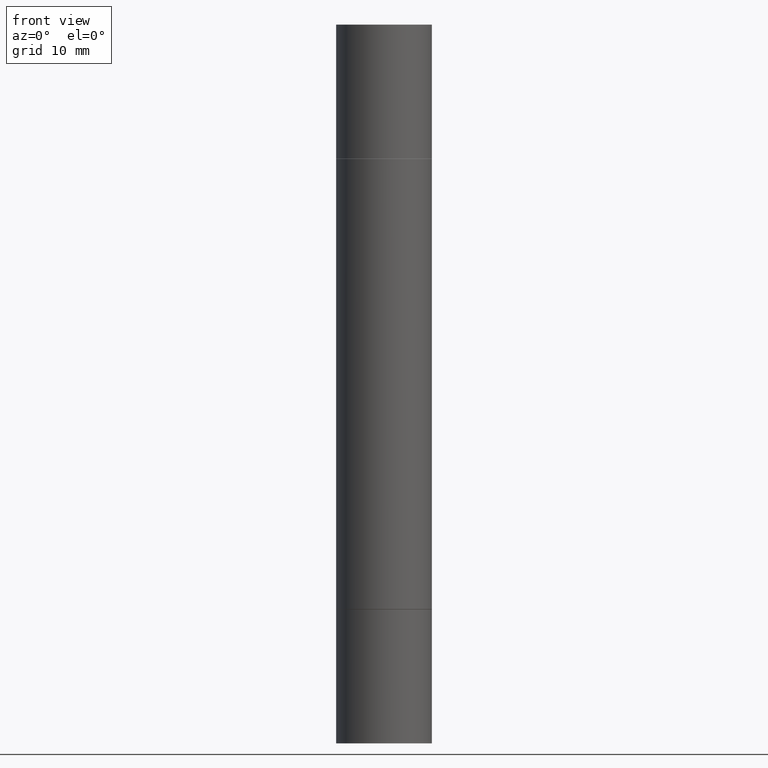
[diagram: clean part render]
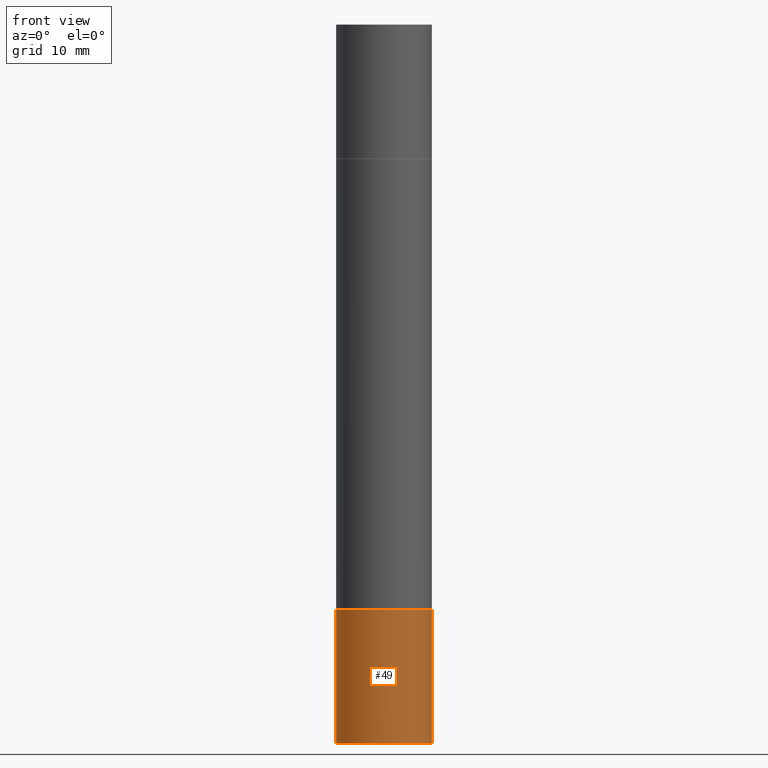
[diagram: same view with one face highlighted and labeled with its STEP entity id]
A machine part, front view. The second image highlights one B-rep face of the part: STEP entity #49.
In plain terms, the highlighted cylindrical surface (partial cylindrical patch) has radius 5 mm, axis along (-0, 0, 1).
Its self-contained STEP definition (entity closure, byte-faithful):
#13 = CARTESIAN_POINT ( 'NONE',  ( -0.1968500000000000250, -7.948690465007109319E-15, -2.952799999999999869 ) ) ;
#17 = EDGE_CURVE ( 'NONE', #582, #111, #510, .T. ) ;
#28 = DIRECTION ( 'NONE',  ( -2.445468806185136597E-29, 3.491481338843145583E-15, 1.000000000000000000 ) ) ;
#30 = DIRECTION ( 'NONE',  ( -2.445468806185136597E-29, 3.491481338843145583E-15, 1.000000000000000000 ) ) ;
#31 = CARTESIAN_POINT ( 'NONE',  ( -0.1968500000000000250, -7.948690465007109319E-15, -2.401599999999999735 ) ) ;
#49 = ADVANCED_FACE ( 'NONE', ( #498 ), #653, .T. ) ;
#83 = LINE ( 'NONE', #313, #542 ) ;
#85 = EDGE_CURVE ( 'NONE', #111, #549, #83, .T. ) ;
#96 = EDGE_CURVE ( 'NONE', #582, #621, #628, .T. ) ;
#98 = AXIS2_PLACEMENT_3D ( 'NONE', #130, #30, #237 ) ;
#111 = VERTEX_POINT ( 'NONE', #261 ) ;
#130 = CARTESIAN_POINT ( 'NONE',  ( 0.000000000000000000, 0.000000000000000000, 0.000000000000000000 ) ) ;
#184 = DIRECTION ( 'NONE',  ( 1.000000000000000000, -6.982962677686262766E-15, 0.000000000000000000 ) ) ;
#223 = CARTESIAN_POINT ( 'NONE',  ( 7.220980290903470182E-29, -1.030964609733603853E-14, -2.952799999999999869 ) ) ;
#229 = VECTOR ( 'NONE', #477, 39.37007874015748143 ) ;
#234 = DIRECTION ( 'NONE',  ( -2.445468806185136597E-29, 3.491481338843145583E-15, 1.000000000000000000 ) ) ;
#237 = DIRECTION ( 'NONE',  ( 1.000000000000000000, -6.982962677686265922E-15, 4.876176775795935793E-29 ) ) ;
#261 = CARTESIAN_POINT ( 'NONE',  ( 0.1968500000000000250, -1.168424230043858014E-14, -2.952799999999999869 ) ) ;
#284 = DIRECTION ( 'NONE',  ( 1.000000000000000000, -6.982962677686267499E-15, 0.000000000000000000 ) ) ;
#287 = CIRCLE ( 'NONE', #344, 0.1968500000000000250 ) ;
#313 = CARTESIAN_POINT ( 'NONE',  ( 0.1968500000000000250, -1.374596203102541608E-15, 9.598753983154300858E-30 ) ) ;
#315 = DIRECTION ( 'NONE',  ( -2.445468806185136877E-29, 3.491481338843145188E-15, 1.000000000000000000 ) ) ;
#322 = CARTESIAN_POINT ( 'NONE',  ( 0.1968500000000000250, -9.759737786468237294E-15, -2.401599999999999735 ) ) ;
#344 = AXIS2_PLACEMENT_3D ( 'NONE', #555, #28, #184 ) ;
#365 = ORIENTED_EDGE ( 'NONE', *, *, #85, .T. ) ;
#411 = ORIENTED_EDGE ( 'NONE', *, *, #17, .T. ) ;
#414 = ORIENTED_EDGE ( 'NONE', *, *, #96, .F. ) ;
#477 = DIRECTION ( 'NONE',  ( -2.445468806185136877E-29, 3.491481338843145188E-15, 1.000000000000000000 ) ) ;
#498 = FACE_OUTER_BOUND ( 'NONE', #579, .T. ) ;
#510 = CIRCLE ( 'NONE', #661, 0.1968500000000000250 ) ;
#542 = VECTOR ( 'NONE', #315, 39.37007874015748143 ) ;
#549 = VERTEX_POINT ( 'NONE', #322 ) ;
#555 = CARTESIAN_POINT ( 'NONE',  ( 5.873037884934223228E-29, -8.385141583365697263E-15, -2.401599999999999735 ) ) ;
#579 = EDGE_LOOP ( 'NONE', ( #414, #411, #365, #674 ) ) ;
#582 = VERTEX_POINT ( 'NONE', #13 ) ;
#621 = VERTEX_POINT ( 'NONE', #31 ) ;
#628 = LINE ( 'NONE', #665, #229 ) ;
#634 = EDGE_CURVE ( 'NONE', #621, #549, #287, .T. ) ;
#653 = CYLINDRICAL_SURFACE ( 'NONE', #98, 0.1968500000000000250 ) ;
#661 = AXIS2_PLACEMENT_3D ( 'NONE', #223, #234, #284 ) ;
#665 = CARTESIAN_POINT ( 'NONE',  ( -0.1968500000000000250, 1.398703375343757393E-15, -9.682923725166783677E-30 ) ) ;
#674 = ORIENTED_EDGE ( 'NONE', *, *, #634, .F. ) ;